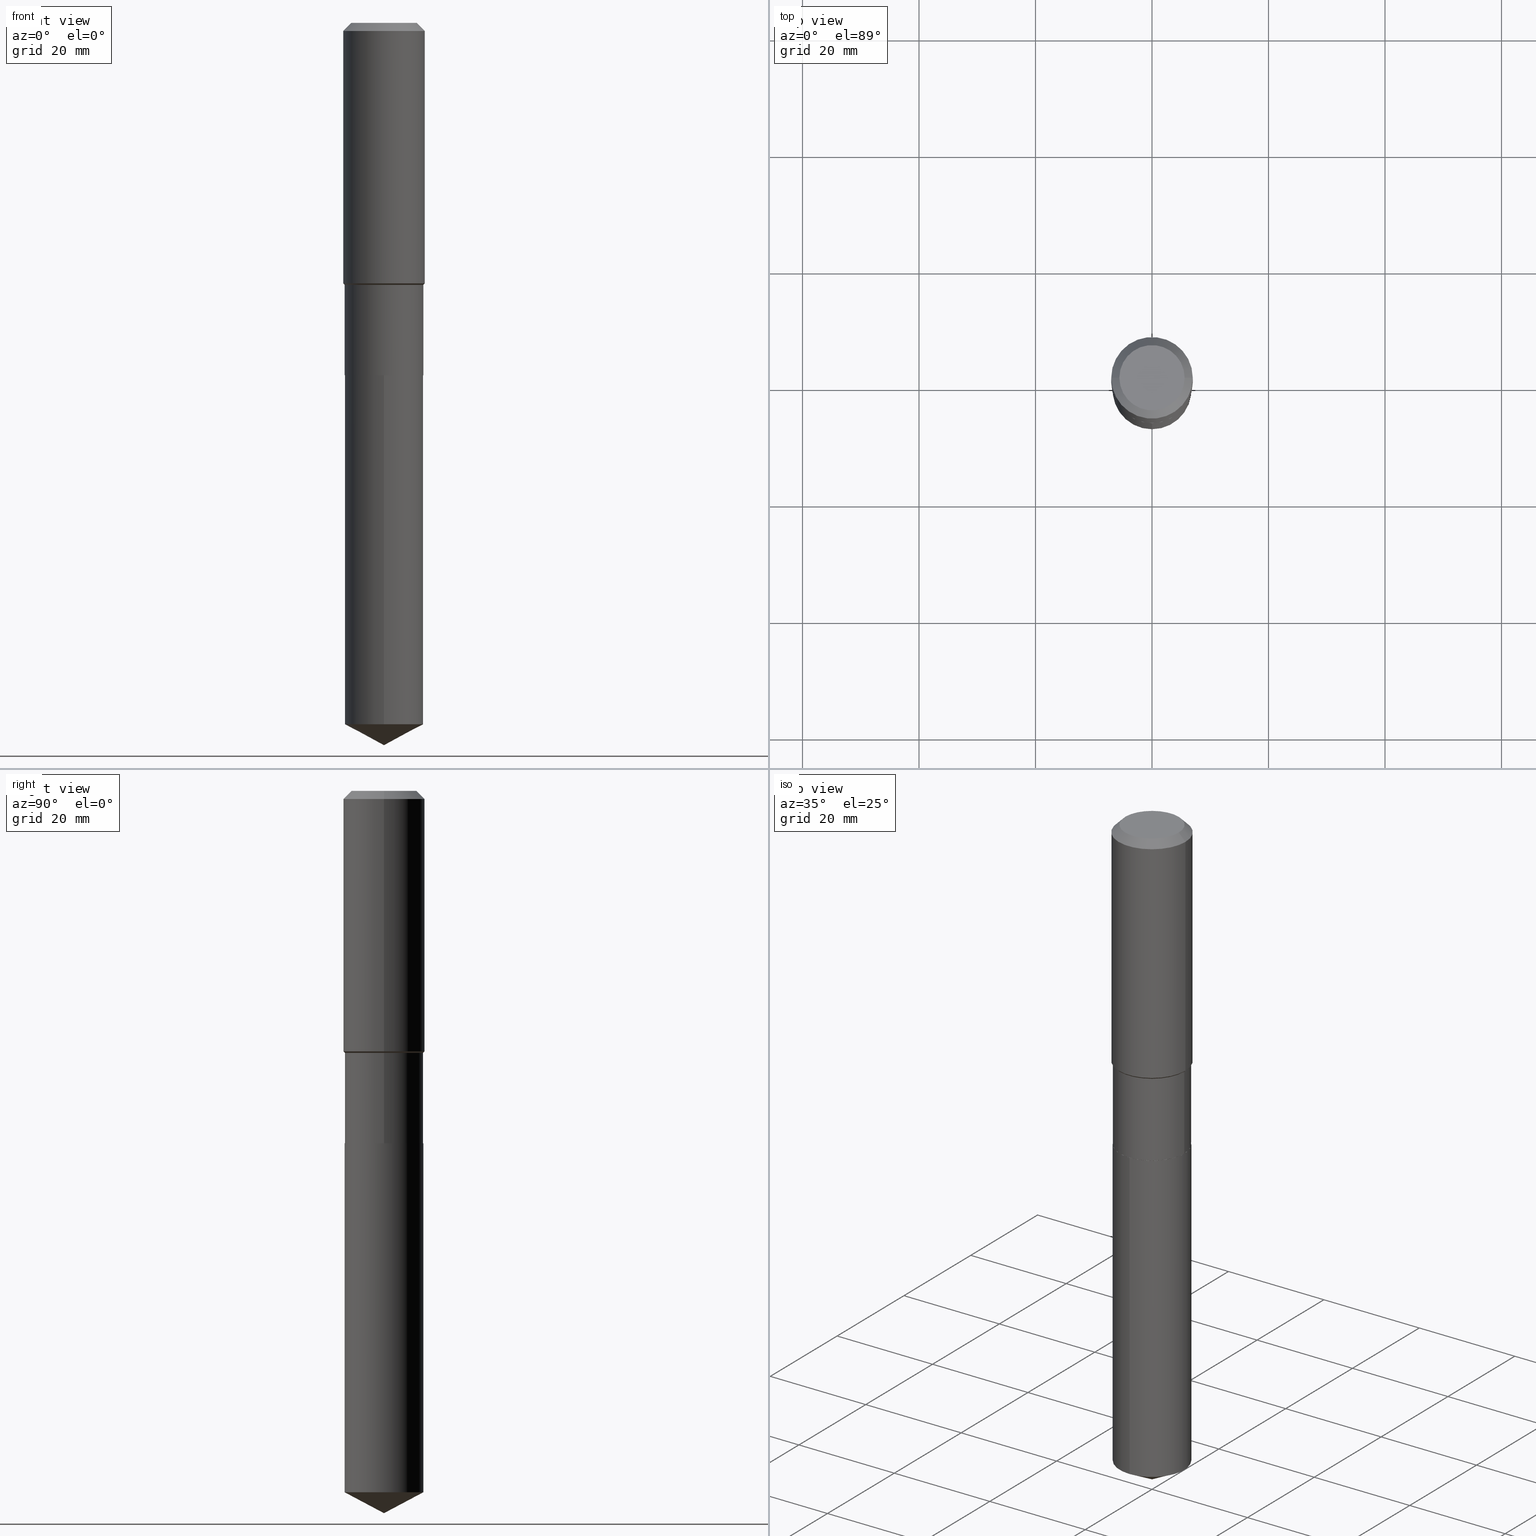
[diagram: canonical four-view strip — front | top / right | iso, engineering-drawing reading convention]
A machine part, canonical four-view strip (front | top / right | iso — engineering-drawing reading convention). The complete STEP part file that produces these views, byte-faithful:
ISO-10303-21;
HEADER;
FILE_DESCRIPTION (( 'STEP AP203' ),
    '1' );
FILE_NAME ('65254.STEP',
    '2024-04-24T22:02:49',
    ( '' ),
    ( '' ),
    'SwSTEP 2.0',
    'SolidWorks 2023',
    '' );
FILE_SCHEMA (( 'CONFIG_CONTROL_DESIGN' ));
ENDSEC;

DATA;
#1 = DIRECTION ( 'NONE',  ( -2.445468806185136877E-29, 3.491481338843145188E-15, 1.000000000000000000 ) ) ;
#2 = VERTEX_POINT ( 'NONE', #42 ) ;
#3 = DIRECTION ( 'NONE',  ( -2.445468806185136597E-29, 3.491481338843145583E-15, 1.000000000000000000 ) ) ;
#4 = VECTOR ( 'NONE', #393, 39.37007874015748143 ) ;
#5 = DIRECTION ( 'NONE',  ( 1.000000000000000000, -6.982962677686265922E-15, 0.000000000000000000 ) ) ;
#6 = EDGE_LOOP ( 'NONE', ( #257, #111, #490, #223 ) ) ;
#7 = CARTESIAN_POINT ( 'NONE',  ( 5.824862149452375369E-29, -8.316359400990487656E-15, -2.381899999999999462 ) ) ;
#8 = PERSON_AND_ORGANIZATION ( #124, #90 ) ;
#9 = CARTESIAN_POINT ( 'NONE',  ( 0.000000000000000000, 0.000000000000000000, 0.000000000000000000 ) ) ;
#10 = CONICAL_SURFACE ( 'NONE', #437, 74.04434902938376695, 1.082104136236487824 ) ;
#11 = PLANE ( 'NONE',  #246 ) ;
#12 = ADVANCED_FACE ( 'NONE', ( #183 ), #217, .T. ) ;
#13 = EDGE_CURVE ( 'NONE', #464, #216, #399, .T. ) ;
#14 = DIRECTION ( 'NONE',  ( -2.445468806185136597E-29, 3.491481338843145583E-15, 1.000000000000000000 ) ) ;
#15 = ORIENTED_EDGE ( 'NONE', *, *, #235, .F. ) ;
#16 = DIRECTION ( 'NONE',  ( -2.445468806185136597E-29, 3.491481338843145583E-15, 1.000000000000000000 ) ) ;
#17 = ORIENTED_EDGE ( 'NONE', *, *, #214, .T. ) ;
#18 = VECTOR ( 'NONE', #103, 39.37007874015748143 ) ;
#19 = ORIENTED_EDGE ( 'NONE', *, *, #455, .F. ) ;
#20 = DIRECTION ( 'NONE',  ( -6.982962677686266711E-15, -1.000000000000000000, 3.083930002255048040E-15 ) ) ;
#21 = PLANE ( 'NONE',  #296 ) ;
#22 = DATE_AND_TIME ( #29, #269 ) ;
#23 = EDGE_CURVE ( 'NONE', #74, #302, #382, .T. ) ;
#24 = PRODUCT_DEFINITION_SHAPE ( 'NONE', 'NONE',  #180 ) ;
#25 = DIRECTION ( 'NONE',  ( -6.982962677686265922E-15, -1.000000000000000000, 3.541896320645549825E-15 ) ) ;
#26 = ORIENTED_EDGE ( 'NONE', *, *, #345, .F. ) ;
#27 = EDGE_CURVE ( 'NONE', #464, #74, #55, .T. ) ;
#28 = ADVANCED_FACE ( 'NONE', ( #308 ), #378, .T. ) ;
#29 = CALENDAR_DATE ( 2024, 24, 4 ) ;
#30 = VERTEX_POINT ( 'NONE', #394 ) ;
#31 = VECTOR ( 'NONE', #243, 39.37007874015748143 ) ;
#32 = DIRECTION ( 'NONE',  ( -2.445468806185136597E-29, 3.491481338843145583E-15, 1.000000000000000000 ) ) ;
#33 = CC_DESIGN_PERSON_AND_ORGANIZATION_ASSIGNMENT ( #398, #193, ( #442 ) ) ;
#34 = LINE ( 'NONE', #177, #236 ) ;
#35 = AXIS2_PLACEMENT_3D ( 'NONE', #134, #474, #366 ) ;
#36 = EDGE_CURVE ( 'NONE', #176, #209, #388, .T. ) ;
#37 = ORIENTED_EDGE ( 'NONE', *, *, #309, .F. ) ;
#38 = CARTESIAN_POINT ( 'NONE',  ( 0.2657499999999999862, -8.038088338284680266E-15, -1.770699999999999275 ) ) ;
#39 = ORIENTED_EDGE ( 'NONE', *, *, #163, .F. ) ;
#40 = CARTESIAN_POINT ( 'NONE',  ( -9.439721640706190018E-47, 1.347742071746724849E-32, 3.860086710912454339E-18 ) ) ;
#41 = DIRECTION ( 'NONE',  ( -2.445468806185136597E-29, 3.491481338843145583E-15, 1.000000000000000000 ) ) ;
#42 = CARTESIAN_POINT ( 'NONE',  ( 0.2204800000000000093, -1.797903149065768707E-15, 3.860086710924123164E-18 ) ) ;
#43 = DIRECTION ( 'NONE',  ( -2.445468806185136597E-29, 3.491481338843145583E-15, 1.000000000000000000 ) ) ;
#44 = LINE ( 'NONE', #196, #362 ) ;
#45 = APPROVAL_STATUS ( 'not_yet_approved' ) ;
#46 = CARTESIAN_POINT ( 'NONE',  ( -9.439721640706190018E-47, 1.347742071746724849E-32, 3.860086710912454339E-18 ) ) ;
#47 = DIRECTION ( 'NONE',  ( -2.445468806185136597E-29, 3.491481338843145583E-15, 1.000000000000000000 ) ) ;
#48 = CARTESIAN_POINT ( 'NONE',  ( 0.000000000000000000, 0.000000000000000000, 0.000000000000000000 ) ) ;
#49 = DIRECTION ( 'NONE',  ( -2.445468806185136597E-29, 3.491481338843145583E-15, 1.000000000000000000 ) ) ;
#50 = EDGE_LOOP ( 'NONE', ( #381, #190, #459, #322 ) ) ;
#51 = LINE ( 'NONE', #396, #425 ) ;
#52 = DIRECTION ( 'NONE',  ( -2.445196029455757916E-29, 3.491871970645102957E-15, 1.000000000000000000 ) ) ;
#53 = CARTESIAN_POINT ( 'NONE',  ( 0.000000000000000000, 0.000000000000000000, 0.000000000000000000 ) ) ;
#54 = ORIENTED_EDGE ( 'NONE', *, *, #395, .T. ) ;
#55 = CIRCLE ( 'NONE', #324, 0.2756000000000002337 ) ;
#56 = CIRCLE ( 'NONE', #211, 0.2756000000000002337 ) ;
#57 = ORIENTED_EDGE ( 'NONE', *, *, #112, .T. ) ;
#58 = CC_DESIGN_APPROVAL ( #81, ( #334 ) ) ;
#59 = EDGE_LOOP ( 'NONE', ( #97, #457 ) ) ;
#60 = APPROVAL_DATE_TIME ( #22, #81 ) ;
#61 = CARTESIAN_POINT ( 'NONE',  ( 5.824862149452375369E-29, -8.316359400990487656E-15, -2.381899999999999462 ) ) ;
#62 = ADVANCED_FACE ( 'NONE', ( #402 ), #415, .T. ) ;
#63 = DATE_TIME_ROLE ( 'classification_date' ) ;
#64 = APPROVAL_ROLE ( '' ) ;
#65 = AXIS2_PLACEMENT_3D ( 'NONE', #238, #125, #356 ) ;
#66 = APPROVAL_STATUS ( 'not_yet_approved' ) ;
#67 = CARTESIAN_POINT ( 'NONE',  ( 0.000000000000000000, 0.000000000000000000, 0.000000000000000000 ) ) ;
#68 = DIRECTION ( 'NONE',  ( 1.000000000000000000, -6.982962677686265922E-15, 0.000000000000000000 ) ) ;
#69 = EDGE_CURVE ( 'NONE', #2, #302, #450, .T. ) ;
#70 = AXIS2_PLACEMENT_3D ( 'NONE', #126, #400, #155 ) ;
#71 = AXIS2_PLACEMENT_3D ( 'NONE', #234, #226, #405 ) ;
#72 = ORIENTED_EDGE ( 'NONE', *, *, #13, .F. ) ;
#73 = ADVANCED_FACE ( 'NONE', ( #205 ), #86, .T. ) ;
#74 = VERTEX_POINT ( 'NONE', #410 ) ;
#75 = EDGE_LOOP ( 'NONE', ( #19, #414, #160, #261 ) ) ;
#76 = CIRCLE ( 'NONE', #215, 0.2657499999999999862 ) ;
#77 = CARTESIAN_POINT ( 'NONE',  ( 1.193851334465927736E-28, -1.704510888171416083E-14, -4.881899999999999906 ) ) ;
#78 = CARTESIAN_POINT ( 'NONE',  ( 4.306103747371095774E-29, -6.147974915501949326E-15, -1.760849999999999138 ) ) ;
#79 = CARTESIAN_POINT ( 'NONE',  ( 5.824862149452375369E-29, -8.316359400990487656E-15, -2.381899999999999462 ) ) ;
#80 = PERSON_AND_ORGANIZATION_ROLE ( 'creator' ) ;
#81 = APPROVAL ( #66, 'UNSPECIFIED' ) ;
#82 = ORIENTED_EDGE ( 'NONE', *, *, #250, .T. ) ;
#83 = FACE_OUTER_BOUND ( 'NONE', #213, .T. ) ;
#84 = DIRECTION ( 'NONE',  ( 1.000000000000000000, -6.982962677686267499E-15, 0.000000000000000000 ) ) ;
#85 = AXIS2_PLACEMENT_3D ( 'NONE', #348, #363, #20 ) ;
#86 = CYLINDRICAL_SURFACE ( 'NONE', #156, 0.2756000000000001227 ) ;
#87 = AXIS2_PLACEMENT_3D ( 'NONE', #53, #120, #267 ) ;
#88 = DIRECTION ( 'NONE',  ( -2.445196029455757916E-29, 3.491871970645102957E-15, 1.000000000000000000 ) ) ;
#89 = ADVANCED_FACE ( 'NONE', ( #83 ), #449, .T. ) ;
#90 = ORGANIZATION ( 'UNSPECIFIED', 'UNSPECIFIED', '' ) ;
#91 = DIRECTION ( 'NONE',  ( 1.000000000000000000, -6.982962677686267499E-15, 4.876176775795935793E-29 ) ) ;
#92 = CYLINDRICAL_SURFACE ( 'NONE', #87, 0.2657500000000000417 ) ;
#93 = ORIENTED_EDGE ( 'NONE', *, *, #431, .T. ) ;
#94 = CARTESIAN_POINT ( 'NONE',  ( 1.888267320282524127E-15, 0.2657499999999916596, -2.381900000000000350 ) ) ;
#95 = DIRECTION ( 'NONE',  ( -1.000000000000000000, 6.982962677686269077E-15, 0.000000000000000000 ) ) ;
#96 = APPROVAL_ROLE ( '' ) ;
#97 = ORIENTED_EDGE ( 'NONE', *, *, #461, .F. ) ;
#98 = FACE_OUTER_BOUND ( 'NONE', #6, .T. ) ;
#99 = COORDINATED_UNIVERSAL_TIME_OFFSET ( 5, 0, .BEHIND. ) ;
#100 = CIRCLE ( 'NONE', #372, 0.2756000000000000116 ) ;
#101 = APPROVAL ( #45, 'UNSPECIFIED' ) ;
#102 = PERSON_AND_ORGANIZATION ( #124, #90 ) ;
#103 = DIRECTION ( 'NONE',  ( -0.7071067811865453523, 2.468850131082234184E-15, -0.7071067811865496822 ) ) ;
#104 = PERSON_AND_ORGANIZATION ( #124, #90 ) ;
#105 = CARTESIAN_POINT ( 'NONE',  ( 1.347942405969256063E-30, -1.924504513970354330E-16, -0.05512000000000035621 ) ) ;
#106 = DATE_TIME_ROLE ( 'creation_date' ) ;
#107 = AXIS2_PLACEMENT_3D ( 'NONE', #357, #14, #128 ) ;
#108 = DIRECTION ( 'NONE',  ( -2.445468806185136597E-29, 3.491481338843145583E-15, 1.000000000000000000 ) ) ;
#109 = APPROVAL ( #420, 'UNSPECIFIED' ) ;
#110 = CIRCLE ( 'NONE', #340, 0.2657499999999999862 ) ;
#111 = ORIENTED_EDGE ( 'NONE', *, *, #214, .F. ) ;
#112 = EDGE_CURVE ( 'NONE', #282, #30, #353, .T. ) ;
#113 = ORIENTED_EDGE ( 'NONE', *, *, #461, .T. ) ;
#114 = CARTESIAN_POINT ( 'NONE',  ( 5.824862149452375369E-29, -8.316359400990487656E-15, -2.381899999999999462 ) ) ;
#115 = VERTEX_POINT ( 'NONE', #195 ) ;
#116 = PLANE ( 'NONE',  #65 ) ;
#117 = CALENDAR_DATE ( 2024, 24, 4 ) ;
#118 = CYLINDRICAL_SURFACE ( 'NONE', #85, 0.2657499999999999862 ) ;
#119 = AXIS2_PLACEMENT_3D ( 'NONE', #194, #253, #392 ) ;
#120 = DIRECTION ( 'NONE',  ( -2.445468806185136597E-29, 3.491481338843145583E-15, 1.000000000000000000 ) ) ;
#121 = DIRECTION ( 'NONE',  ( -6.982962677686266711E-15, -1.000000000000000000, 3.083930002255048040E-15 ) ) ;
#122 = APPROVAL_ROLE ( '' ) ;
#123 = ORIENTED_EDGE ( 'NONE', *, *, #447, .T. ) ;
#124 = PERSON ( 'UNSPECIFIED', 'UNSPECIFIED', 'UNSPECIFIED', ('UNSPECIFIED'), ('UNSPECIFIED'), ('UNSPECIFIED') ) ;
#125 = DIRECTION ( 'NONE',  ( 2.445196029455757636E-29, -3.491871970645102957E-15, -1.000000000000000000 ) ) ;
#126 = CARTESIAN_POINT ( 'NONE',  ( 4.330191615112019703E-29, -6.182366006689555708E-15, -1.770699999999999275 ) ) ;
#127 = CC_DESIGN_DATE_AND_TIME_ASSIGNMENT ( #295, #106, ( #180 ) ) ;
#128 = DIRECTION ( 'NONE',  ( 1.000000000000000000, -6.982962677686265922E-15, 0.000000000000000000 ) ) ;
#129 = EDGE_LOOP ( 'NONE', ( #365, #360 ) ) ;
#130 = AXIS2_PLACEMENT_3D ( 'NONE', #187, #47, #5 ) ;
#131 = FACE_OUTER_BOUND ( 'NONE', #350, .T. ) ;
#132 = VERTEX_POINT ( 'NONE', #262 ) ;
#133 = DIRECTION ( 'NONE',  ( -2.445468806185136597E-29, 3.491481338843145583E-15, 1.000000000000000000 ) ) ;
#134 = CARTESIAN_POINT ( 'NONE',  ( 1.159234166810088116E-28, -1.655263159750675683E-14, -4.740598218535962971 ) ) ;
#135 = FACE_OUTER_BOUND ( 'NONE', #389, .T. ) ;
#136 = DATE_AND_TIME ( #419, #197 ) ;
#137 = ORIENTED_EDGE ( 'NONE', *, *, #384, .F. ) ;
#138 = CC_DESIGN_PERSON_AND_ORGANIZATION_ASSIGNMENT ( #102, #336, ( #180 ) ) ;
#139 = CIRCLE ( 'NONE', #458, 0.2657500000000000417 ) ;
#140 = APPROVAL_DATE_TIME ( #422, #109 ) ;
#141 = LINE ( 'NONE', #375, #18 ) ;
#142 = CALENDAR_DATE ( 2024, 24, 4 ) ;
#143 = VECTOR ( 'NONE', #310, 39.37007874015748143 ) ;
#144 = ORIENTED_EDGE ( 'NONE', *, *, #411, .F. ) ;
#145 = EDGE_LOOP ( 'NONE', ( #478, #279, #39, #313 ) ) ;
#146 = ORIENTED_EDGE ( 'NONE', *, *, #431, .F. ) ;
#147 = ORIENTED_EDGE ( 'NONE', *, *, #455, .T. ) ;
#148 = PRODUCT_RELATED_PRODUCT_CATEGORY ( 'detail', '', ( #251 ) ) ;
#149 = DIRECTION ( 'NONE',  ( -1.000000000000000000, 6.982962677686269077E-15, 0.000000000000000000 ) ) ;
#150 = FACE_OUTER_BOUND ( 'NONE', #456, .T. ) ;
#151 = ORIENTED_EDGE ( 'NONE', *, *, #273, .F. ) ;
#152 = CC_DESIGN_APPROVAL ( #109, ( #180 ) ) ;
#153 = ADVANCED_FACE ( 'NONE', ( #150 ), #118, .T. ) ;
#154 = CARTESIAN_POINT ( 'NONE',  ( -0.2657500000000000417, 1.888267320282466541E-15, -1.307207000235241229E-29 ) ) ;
#155 = DIRECTION ( 'NONE',  ( 1.000000000000000000, -6.982962677686264344E-15, 0.000000000000000000 ) ) ;
#156 = AXIS2_PLACEMENT_3D ( 'NONE', #48, #200, #91 ) ;
#157 = AXIS2_PLACEMENT_3D ( 'NONE', #438, #49, #164 ) ;
#158 = CC_DESIGN_APPROVAL ( #101, ( #442 ) ) ;
#159 = ADVANCED_FACE ( 'NONE', ( #98 ), #256, .T. ) ;
#160 = ORIENTED_EDGE ( 'NONE', *, *, #163, .T. ) ;
#161 = DIRECTION ( 'NONE',  ( -2.445196029455757916E-29, 3.491871970645102957E-15, 1.000000000000000000 ) ) ;
#162 = DIRECTION ( 'NONE',  ( 1.000000000000000000, -6.982962677686266711E-15, 4.876132675269083677E-29 ) ) ;
#163 = EDGE_CURVE ( 'NONE', #302, #216, #100, .T. ) ;
#164 = DIRECTION ( 'NONE',  ( 1.000000000000000000, -6.982962677686265922E-15, 0.000000000000000000 ) ) ;
#165 = ORIENTED_EDGE ( 'NONE', *, *, #471, .F. ) ;
#166 = VECTOR ( 'NONE', #470, 39.37007874015748143 ) ;
#167 = ORIENTED_EDGE ( 'NONE', *, *, #36, .F. ) ;
#168 = DIRECTION ( 'NONE',  ( -2.445196029455757916E-29, 3.491871970645102957E-15, 1.000000000000000000 ) ) ;
#169 = DIRECTION ( 'NONE',  ( 1.000000000000000000, 0.000000000000000000, 0.000000000000000000 ) ) ;
#170 = EDGE_CURVE ( 'NONE', #171, #216, #141, .T. ) ;
#171 = VERTEX_POINT ( 'NONE', #231 ) ;
#172 = DESIGN_CONTEXT ( 'detailed design', #483, 'design' ) ;
#173 = CIRCLE ( 'NONE', #416, 0.2657500000000000417 ) ;
#174 = ADVANCED_FACE ( 'NONE', ( #404 ), #332, .T. ) ;
#175 = CARTESIAN_POINT ( 'NONE',  ( 1.888267320282582503E-15, 0.2657499999999916596, -2.381900000000000350 ) ) ;
#176 = VERTEX_POINT ( 'NONE', #278 ) ;
#177 = CARTESIAN_POINT ( 'NONE',  ( 1.193720249620006640E-28, -1.704696977349232690E-14, -4.881899999999999906 ) ) ;
#178 = VECTOR ( 'NONE', #268, 39.37007874015748143 ) ;
#179 = APPROVAL_PERSON_ORGANIZATION ( #206, #81, #96 ) ;
#180 = PRODUCT_DEFINITION ( 'UNKNOWN', '', #442, #172 ) ;
#181 = EDGE_CURVE ( 'NONE', #216, #302, #465, .T. ) ;
#182 = CARTESIAN_POINT ( 'NONE',  ( 5.823639415049283689E-29, -8.314613660321065363E-15, -2.381399999999999739 ) ) ;
#183 = FACE_OUTER_BOUND ( 'NONE', #50, .T. ) ;
#184 = CYLINDRICAL_SURFACE ( 'NONE', #347, 0.2657499999999999862 ) ;
#185 = DIRECTION ( 'NONE',  ( 1.000000000000000000, -6.982962677686265133E-15, 4.876176775795935232E-29 ) ) ;
#186 = VECTOR ( 'NONE', #168, 39.37007874015748143 ) ;
#187 = CARTESIAN_POINT ( 'NONE',  ( 5.824862149452375369E-29, -8.316359400990487656E-15, -2.381899999999999462 ) ) ;
#188 = DIRECTION ( 'NONE',  ( -6.165590087286839185E-15, -0.8829475928589269884, 0.4694715627858908058 ) ) ;
#189 = EDGE_LOOP ( 'NONE', ( #151, #123, #167 ) ) ;
#190 = ORIENTED_EDGE ( 'NONE', *, *, #235, .T. ) ;
#191 = CARTESIAN_POINT ( 'NONE',  ( -8.432970799170186122E-28, 1.204292351072433206E-13, 34.48817874015747975 ) ) ;
#192 = EDGE_CURVE ( 'NONE', #209, #176, #204, .T. ) ;
#193 = PERSON_AND_ORGANIZATION_ROLE ( 'design_supplier' ) ;
#194 = CARTESIAN_POINT ( 'NONE',  ( 1.159234166810088116E-28, -1.655263159750675683E-14, -4.740598218535962971 ) ) ;
#195 = CARTESIAN_POINT ( 'NONE',  ( -0.2657500000000000973, -5.360222513222844389E-15, -2.381399999999999739 ) ) ;
#196 = CARTESIAN_POINT ( 'NONE',  ( -0.2657499999999999862, -4.294098686407089167E-15, -1.770699999999999275 ) ) ;
#197 = LOCAL_TIME ( 18, 2, 49.00000000000000000, #99 ) ;
#198 = DIRECTION ( 'NONE',  ( -2.445468806185136597E-29, 3.491481338843145583E-15, 1.000000000000000000 ) ) ;
#199 =( NAMED_UNIT ( * ) SI_UNIT ( $, .STERADIAN. ) SOLID_ANGLE_UNIT ( ) );
#200 = DIRECTION ( 'NONE',  ( -2.445468806185136597E-29, 3.491481338843145583E-15, 1.000000000000000000 ) ) ;
#201 = ORIENTED_EDGE ( 'NONE', *, *, #273, .T. ) ;
#202 = CARTESIAN_POINT ( 'NONE',  ( -1.855722331595066971E-15, -0.2657500000000083129, -2.381899999999998574 ) ) ;
#203 = ORIENTED_EDGE ( 'NONE', *, *, #489, .F. ) ;
#204 = CIRCLE ( 'NONE', #35, 0.2657499999999999862 ) ;
#205 = FACE_OUTER_BOUND ( 'NONE', #446, .T. ) ;
#206 = PERSON_AND_ORGANIZATION ( #124, #90 ) ;
#207 = FACE_OUTER_BOUND ( 'NONE', #189, .T. ) ;
#208 = PERSON_AND_ORGANIZATION_ROLE ( 'design_owner' ) ;
#209 = VERTEX_POINT ( 'NONE', #355 ) ;
#210 = ADVANCED_FACE ( 'NONE', ( #409 ), #21, .F. ) ;
#211 = AXIS2_PLACEMENT_3D ( 'NONE', #480, #133, #84 ) ;
#212 = APPROVAL_PERSON_ORGANIZATION ( #254, #109, #64 ) ;
#213 = EDGE_LOOP ( 'NONE', ( #413, #472, #144, #448 ) ) ;
#214 = EDGE_CURVE ( 'NONE', #171, #2, #390, .T. ) ;
#215 = AXIS2_PLACEMENT_3D ( 'NONE', #277, #481, #230 ) ;
#216 = VERTEX_POINT ( 'NONE', #476 ) ;
#217 = CYLINDRICAL_SURFACE ( 'NONE', #221, 0.2657500000000000417 ) ;
#218 = FACE_OUTER_BOUND ( 'NONE', #479, .T. ) ;
#219 = CARTESIAN_POINT ( 'NONE',  ( 5.823639415049283689E-29, -8.314613660321065363E-15, -2.381399999999999739 ) ) ;
#220 = DIRECTION ( 'NONE',  ( 1.000000000000000000, -6.982962677686265922E-15, 0.000000000000000000 ) ) ;
#221 = AXIS2_PLACEMENT_3D ( 'NONE', #9, #432, #185 ) ;
#222 = AXIS2_PLACEMENT_3D ( 'NONE', #341, #385, #149 ) ;
#223 = ORIENTED_EDGE ( 'NONE', *, *, #181, .T. ) ;
#224 = APPROVAL_PERSON_ORGANIZATION ( #8, #101, #122 ) ;
#225 = DIRECTION ( 'NONE',  ( -6.982962677686265922E-15, -1.000000000000000000, 3.541896320645549825E-15 ) ) ;
#226 = DIRECTION ( 'NONE',  ( -2.445468806185136597E-29, 3.491481338843145583E-15, 1.000000000000000000 ) ) ;
#227 = FACE_OUTER_BOUND ( 'NONE', #59, .T. ) ;
#228 = CARTESIAN_POINT ( 'NONE',  ( -0.2657499999999999862, -5.360222513222844389E-15, -1.770699999999999275 ) ) ;
#229 = DATE_AND_TIME ( #117, #239 ) ;
#230 = DIRECTION ( 'NONE',  ( 1.000000000000000000, -6.982962677686264344E-15, 0.000000000000000000 ) ) ;
#231 = CARTESIAN_POINT ( 'NONE',  ( -0.2204800000000000093, 1.635828836874783961E-15, 3.860086710901350968E-18 ) ) ;
#232 = EDGE_CURVE ( 'NONE', #287, #242, #314, .T. ) ;
#233 = VECTOR ( 'NONE', #346, 39.37007874015748143 ) ;
#234 = CARTESIAN_POINT ( 'NONE',  ( 4.330191615112019703E-29, -6.182366006689555708E-15, -1.770699999999999275 ) ) ;
#235 = EDGE_CURVE ( 'NONE', #115, #132, #173, .T. ) ;
#236 = VECTOR ( 'NONE', #188, 39.37007874015748854 ) ;
#237 = CARTESIAN_POINT ( 'NONE',  ( -4.719860820353095009E-47, 6.738710358733624243E-33, 1.930043355456227170E-18 ) ) ;
#238 = CARTESIAN_POINT ( 'NONE',  ( 5.824862149452375369E-29, -8.316359400990487656E-15, -2.381899999999999462 ) ) ;
#239 = LOCAL_TIME ( 18, 2, 49.00000000000000000, #462 ) ;
#240 = ORIENTED_EDGE ( 'NONE', *, *, #352, .F. ) ;
#241 = CARTESIAN_POINT ( 'NONE',  ( 5.824862149452375369E-29, -8.316359400990487656E-15, -2.381899999999999462 ) ) ;
#242 = VERTEX_POINT ( 'NONE', #175 ) ;
#243 = DIRECTION ( 'NONE',  ( 0.7071067811865453523, -7.319954787623248157E-15, -0.7071067811865496822 ) ) ;
#244 = ORIENTED_EDGE ( 'NONE', *, *, #192, .T. ) ;
#245 = AXIS2_PLACEMENT_3D ( 'NONE', #453, #298, #95 ) ;
#246 = AXIS2_PLACEMENT_3D ( 'NONE', #241, #317, #467 ) ;
#247 = ORIENTED_EDGE ( 'NONE', *, *, #255, .F. ) ;
#248 = PERSON_AND_ORGANIZATION ( #124, #90 ) ;
#249 = APPLICATION_PROTOCOL_DEFINITION ( 'international standard', 'config_control_design', 1994, #483 ) ;
#250 = EDGE_CURVE ( 'NONE', #444, #304, #325, .T. ) ;
#251 = PRODUCT ( '65254', '65254', '', ( #292 ) ) ;
#252 = PERSON_AND_ORGANIZATION_ROLE ( 'classification_officer' ) ;
#253 = DIRECTION ( 'NONE',  ( -2.445196029455757916E-29, 3.491871970645102957E-15, 1.000000000000000000 ) ) ;
#254 = PERSON_AND_ORGANIZATION ( #124, #90 ) ;
#255 = EDGE_CURVE ( 'NONE', #132, #115, #139, .T. ) ;
#256 = CONICAL_SURFACE ( 'NONE', #222, 0.2756000000000000116, 0.7853981633974452814 ) ;
#257 = ORIENTED_EDGE ( 'NONE', *, *, #69, .F. ) ;
#258 = CC_DESIGN_PERSON_AND_ORGANIZATION_ASSIGNMENT ( #248, #252, ( #334 ) ) ;
#259 = CIRCLE ( 'NONE', #454, 0.2652499999999999858 ) ;
#260 = ADVANCED_BREP_SHAPE_REPRESENTATION ( '65254', ( #288, #300, #380 ), #305 ) ;
#261 = ORIENTED_EDGE ( 'NONE', *, *, #170, .F. ) ;
#262 = CARTESIAN_POINT ( 'NONE',  ( 0.2657500000000000417, -1.017033599191619229E-14, -2.381399999999999739 ) ) ;
#263 = ORIENTED_EDGE ( 'NONE', *, *, #469, .T. ) ;
#264 = ORIENTED_EDGE ( 'NONE', *, *, #345, .T. ) ;
#265 = CLOSED_SHELL ( 'NONE', ( #174, #62, #299, #89, #370, #12, #418, #73, #159, #210, #290, #434 ) ) ;
#266 = VECTOR ( 'NONE', #312, 39.37007874015748143 ) ;
#267 = DIRECTION ( 'NONE',  ( 1.000000000000000000, -6.982962677686265133E-15, 4.876176775795935232E-29 ) ) ;
#268 = DIRECTION ( 'NONE',  ( -2.445468806185136877E-29, 3.491481338843145188E-15, 1.000000000000000000 ) ) ;
#269 = LOCAL_TIME ( 18, 2, 49.00000000000000000, #367 ) ;
#270 = PERSON_AND_ORGANIZATION ( #124, #90 ) ;
#271 = CARTESIAN_POINT ( 'NONE',  ( -1.855722331595066971E-15, -0.2657500000000083129, -2.381899999999998574 ) ) ;
#272 = DIRECTION ( 'NONE',  ( 1.000000000000000000, -6.982962677686265922E-15, 0.000000000000000000 ) ) ;
#273 = EDGE_CURVE ( 'NONE', #439, #176, #34, .T. ) ;
#274 = FACE_OUTER_BOUND ( 'NONE', #145, .T. ) ;
#275 = CARTESIAN_POINT ( 'NONE',  ( 1.193720249620006416E-28, -1.704696977349232690E-14, -4.881899999999999906 ) ) ;
#276 = APPROVAL_DATE_TIME ( #229, #101 ) ;
#277 = CARTESIAN_POINT ( 'NONE',  ( 4.330191615112019703E-29, -6.182366006689555708E-15, -1.770699999999999275 ) ) ;
#278 = CARTESIAN_POINT ( 'NONE',  ( -1.855722331595009384E-15, -0.2657500000000165286, -4.740598218535962083 ) ) ;
#279 = ORIENTED_EDGE ( 'NONE', *, *, #13, .T. ) ;
#280 = VECTOR ( 'NONE', #1, 39.37007874015748143 ) ;
#281 = CONICAL_SURFACE ( 'NONE', #130, 0.2652499999999999858, 0.7853981633976190313 ) ;
#282 = VERTEX_POINT ( 'NONE', #285 ) ;
#283 = CC_DESIGN_PERSON_AND_ORGANIZATION_ASSIGNMENT ( #270, #80, ( #442 ) ) ;
#284 = LINE ( 'NONE', #445, #4 ) ;
#285 = CARTESIAN_POINT ( 'NONE',  ( -0.2652499999999999858, -6.428995567212710813E-15, -2.381899999999999462 ) ) ;
#286 = DIRECTION ( 'NONE',  ( -2.445196029455757916E-29, 3.491871970645102957E-15, 1.000000000000000000 ) ) ;
#287 = VERTEX_POINT ( 'NONE', #271 ) ;
#288 = MANIFOLD_SOLID_BREP ( 'Body-Move/Copy2[1]', #428 ) ;
#289 = DIRECTION ( 'NONE',  ( -1.000000000000000000, 6.982962677686265922E-15, -4.876176775795935793E-29 ) ) ;
#290 = ADVANCED_FACE ( 'NONE', ( #227 ), #11, .F. ) ;
#291 = SHAPE_DEFINITION_REPRESENTATION ( #24, #260 ) ;
#292 = MECHANICAL_CONTEXT ( 'NONE', #318, 'mechanical' ) ;
#293 = ORIENTED_EDGE ( 'NONE', *, *, #255, .T. ) ;
#294 = LOCAL_TIME ( 18, 2, 49.00000000000000000, #368 ) ;
#295 = DATE_AND_TIME ( #142, #326 ) ;
#296 = AXIS2_PLACEMENT_3D ( 'NONE', #237, #329, #289 ) ;
#297 = ORIENTED_EDGE ( 'NONE', *, *, #23, .T. ) ;
#298 = DIRECTION ( 'NONE',  ( 2.445468806185136597E-29, -3.491481338843145583E-15, -1.000000000000000000 ) ) ;
#299 = ADVANCED_FACE ( 'NONE', ( #274 ), #473, .T. ) ;
#300 = MANIFOLD_SOLID_BREP ( 'Body-Move/Copy2[2]', #265 ) ;
#301 = ORIENTED_EDGE ( 'NONE', *, *, #192, .F. ) ;
#302 = VERTEX_POINT ( 'NONE', #343 ) ;
#303 = VECTOR ( 'NONE', #88, 39.37007874015748143 ) ;
#304 = VERTEX_POINT ( 'NONE', #38 ) ;
#305 =( GEOMETRIC_REPRESENTATION_CONTEXT ( 3 ) GLOBAL_UNCERTAINTY_ASSIGNED_CONTEXT ( ( #452 ) ) GLOBAL_UNIT_ASSIGNED_CONTEXT ( ( #433, #468, #199 ) ) REPRESENTATION_CONTEXT ( 'NONE', 'WORKASPACE' ) );
#306 = DIRECTION ( 'NONE',  ( 1.000000000000000000, -6.982962677686264344E-15, 0.000000000000000000 ) ) ;
#307 = CARTESIAN_POINT ( 'NONE',  ( 5.824862149452375369E-29, -8.316359400990487656E-15, -2.381899999999999462 ) ) ;
#308 = FACE_OUTER_BOUND ( 'NONE', #320, .T. ) ;
#309 = EDGE_CURVE ( 'NONE', #304, #444, #76, .T. ) ;
#310 = DIRECTION ( 'NONE',  ( -2.445468806185136877E-29, 3.491481338843145188E-15, 1.000000000000000000 ) ) ;
#311 = DIRECTION ( 'NONE',  ( 1.000000000000000000, -6.982962677686267499E-15, 0.000000000000000000 ) ) ;
#312 = DIRECTION ( 'NONE',  ( 6.273719981627770021E-15, 0.8829475928589302081, 0.4694715627858845886 ) ) ;
#313 = ORIENTED_EDGE ( 'NONE', *, *, #23, .F. ) ;
#314 = CIRCLE ( 'NONE', #477, 0.2657499999999999862 ) ;
#315 = LENGTH_MEASURE_WITH_UNIT ( LENGTH_MEASURE( 0.02539999999999999897 ), #319 );
#316 = ADVANCED_FACE ( 'NONE', ( #207 ), #10, .T. ) ;
#317 = DIRECTION ( 'NONE',  ( -2.438088387897960049E-29, 3.491481338843145188E-15, 1.000000000000000000 ) ) ;
#318 = APPLICATION_CONTEXT ( 'configuration controlled 3d designs of mechanical parts and assemblies' ) ;
#319 =( LENGTH_UNIT ( ) NAMED_UNIT ( * ) SI_UNIT ( $, .METRE. ) );
#320 = EDGE_LOOP ( 'NONE', ( #358, #201, #301 ) ) ;
#321 = FACE_OUTER_BOUND ( 'NONE', #129, .T. ) ;
#322 = ORIENTED_EDGE ( 'NONE', *, *, #250, .F. ) ;
#323 = DIRECTION ( 'NONE',  ( 1.000000000000000000, -6.982962677686267499E-15, 4.876176775795935793E-29 ) ) ;
#324 = AXIS2_PLACEMENT_3D ( 'NONE', #78, #3, #311 ) ;
#325 = CIRCLE ( 'NONE', #430, 0.2657499999999999862 ) ;
#326 = LOCAL_TIME ( 18, 2, 49.00000000000000000, #488 ) ;
#327 = ORIENTED_EDGE ( 'NONE', *, *, #232, .F. ) ;
#328 = DIRECTION ( 'NONE',  ( -0.7071067811865511255, 7.493145998870366782E-15, 0.7071067811865439090 ) ) ;
#329 = DIRECTION ( 'NONE',  ( 2.438088387897960049E-29, -3.491481338843145188E-15, -1.000000000000000000 ) ) ;
#330 = DIRECTION ( 'NONE',  ( -6.982962677686266711E-15, -1.000000000000000000, 3.083930002255048040E-15 ) ) ;
#331 = AXIS2_PLACEMENT_3D ( 'NONE', #114, #43, #220 ) ;
#332 = CONICAL_SURFACE ( 'NONE', #107, 0.2652499999999999858, 0.7853981633976190313 ) ;
#333 = CC_DESIGN_DATE_AND_TIME_ASSIGNMENT ( #136, #63, ( #334 ) ) ;
#334 = SECURITY_CLASSIFICATION ( '', '', #373 ) ;
#335 = DIRECTION ( 'NONE',  ( 1.000000000000000000, -6.982962677686266711E-15, 0.000000000000000000 ) ) ;
#336 = PERSON_AND_ORGANIZATION_ROLE ( 'creator' ) ;
#337 = DIRECTION ( 'NONE',  ( 1.000000000000000000, -6.982962677686266711E-15, 0.000000000000000000 ) ) ;
#338 = CARTESIAN_POINT ( 'NONE',  ( 0.2756000000000000116, -2.083203699582869812E-15, -0.05512000000000035621 ) ) ;
#339 = AXIS2_PLACEMENT_3D ( 'NONE', #191, #460, #225 ) ;
#340 = AXIS2_PLACEMENT_3D ( 'NONE', #7, #463, #121 ) ;
#341 = CARTESIAN_POINT ( 'NONE',  ( 1.347942405969256063E-30, -1.924504513970354330E-16, -0.05512000000000035621 ) ) ;
#342 = CARTESIAN_POINT ( 'NONE',  ( -0.2756000000000001227, 1.958255779754836984E-15, -1.355658510874252567E-29 ) ) ;
#343 = CARTESIAN_POINT ( 'NONE',  ( 0.2756000000000000116, -2.116954965367370658E-15, -0.05512000000000035621 ) ) ;
#344 = ORIENTED_EDGE ( 'NONE', *, *, #36, .T. ) ;
#345 = EDGE_CURVE ( 'NONE', #30, #132, #484, .T. ) ;
#346 = DIRECTION ( 'NONE',  ( -2.445468806185136877E-29, 3.491481338843145188E-15, 1.000000000000000000 ) ) ;
#347 = AXIS2_PLACEMENT_3D ( 'NONE', #307, #161, #401 ) ;
#348 = CARTESIAN_POINT ( 'NONE',  ( 5.824862149452375369E-29, -8.316359400990487656E-15, -2.381899999999999462 ) ) ;
#349 = DIRECTION ( 'NONE',  ( 1.000000000000000000, -6.982962677686266711E-15, 4.876132675269083677E-29 ) ) ;
#350 = EDGE_LOOP ( 'NONE', ( #293, #263, #37, #203 ) ) ;
#351 = CARTESIAN_POINT ( 'NONE',  ( -0.2756000000000002337, -4.189719135747111948E-15, -1.760849999999999138 ) ) ;
#352 = EDGE_CURVE ( 'NONE', #176, #287, #436, .T. ) ;
#353 = CIRCLE ( 'NONE', #331, 0.2652499999999999858 ) ;
#354 = CONICAL_SURFACE ( 'NONE', #71, 0.2657499999999999862, 0.7853981633974533860 ) ;
#355 = CARTESIAN_POINT ( 'NONE',  ( 1.888267320282582109E-15, 0.2657499999999834994, -4.740598218535963859 ) ) ;
#356 = DIRECTION ( 'NONE',  ( 6.982962677686265922E-15, 1.000000000000000000, -3.491871970645102957E-15 ) ) ;
#357 = CARTESIAN_POINT ( 'NONE',  ( 5.824862149452375369E-29, -8.316359400990487656E-15, -2.381899999999999462 ) ) ;
#358 = ORIENTED_EDGE ( 'NONE', *, *, #447, .F. ) ;
#359 = DIRECTION ( 'NONE',  ( 0.7071067811865511255, -2.468850131082294531E-15, 0.7071067811865439090 ) ) ;
#360 = ORIENTED_EDGE ( 'NONE', *, *, #471, .T. ) ;
#361 = ORIENTED_EDGE ( 'NONE', *, *, #181, .F. ) ;
#362 = VECTOR ( 'NONE', #328, 39.37007874015748143 ) ;
#363 = DIRECTION ( 'NONE',  ( -2.445196029455757916E-29, 3.491871970645102957E-15, 1.000000000000000000 ) ) ;
#364 = DIRECTION ( 'NONE',  ( 0.000000000000000000, 0.000000000000000000, 1.000000000000000000 ) ) ;
#365 = ORIENTED_EDGE ( 'NONE', *, *, #232, .T. ) ;
#366 = DIRECTION ( 'NONE',  ( -6.982962677686266711E-15, -1.000000000000000000, 4.111906669673397387E-15 ) ) ;
#367 = COORDINATED_UNIVERSAL_TIME_OFFSET ( 5, 0, .BEHIND. ) ;
#368 = COORDINATED_UNIVERSAL_TIME_OFFSET ( 5, 0, .BEHIND. ) ;
#369 = EDGE_LOOP ( 'NONE', ( #146, #57, #264, #15 ) ) ;
#370 = ADVANCED_FACE ( 'NONE', ( #131 ), #92, .T. ) ;
#371 = ADVANCED_FACE ( 'NONE', ( #218 ), #184, .T. ) ;
#372 = AXIS2_PLACEMENT_3D ( 'NONE', #105, #108, #68 ) ;
#373 = SECURITY_CLASSIFICATION_LEVEL ( 'unclassified' ) ;
#374 = CC_DESIGN_PERSON_AND_ORGANIZATION_ASSIGNMENT ( #104, #208, ( #251 ) ) ;
#375 = CARTESIAN_POINT ( 'NONE',  ( -0.2756000000000000116, 1.732054062573300039E-15, -0.05512000000000035621 ) ) ;
#376 = ORIENTED_EDGE ( 'NONE', *, *, #395, .F. ) ;
#377 = DIRECTION ( 'NONE',  ( -2.445468806185136597E-29, 3.491481338843145583E-15, 1.000000000000000000 ) ) ;
#378 = CONICAL_SURFACE ( 'NONE', #339, 74.04434902938376695, 1.082104136236487824 ) ;
#379 = AXIS2_PLACEMENT_3D ( 'NONE', #440, #407, #323 ) ;
#380 = AXIS2_PLACEMENT_3D ( 'NONE', #67, #364, #169 ) ;
#381 = ORIENTED_EDGE ( 'NONE', *, *, #469, .F. ) ;
#382 = LINE ( 'NONE', #429, #233 ) ;
#383 = DIMENSIONAL_EXPONENTS ( 1.000000000000000000, 0.000000000000000000, 0.000000000000000000, 0.000000000000000000, 0.000000000000000000, 0.000000000000000000, 0.000000000000000000 ) ;
#384 = EDGE_CURVE ( 'NONE', #444, #464, #44, .T. ) ;
#385 = DIRECTION ( 'NONE',  ( 2.445468806185136597E-29, -3.491481338843145583E-15, -1.000000000000000000 ) ) ;
#386 = ORIENTED_EDGE ( 'NONE', *, *, #27, .F. ) ;
#387 = DIRECTION ( 'NONE',  ( -2.445468806185136597E-29, 3.491481338843145583E-15, 1.000000000000000000 ) ) ;
#388 = CIRCLE ( 'NONE', #119, 0.2657499999999999862 ) ;
#389 = EDGE_LOOP ( 'NONE', ( #137, #82, #482, #386 ) ) ;
#390 = CIRCLE ( 'NONE', #451, 0.2204800000000000093 ) ;
#391 = ORIENTED_EDGE ( 'NONE', *, *, #27, .T. ) ;
#392 = DIRECTION ( 'NONE',  ( -6.982962677686266711E-15, -1.000000000000000000, 4.111906669673397387E-15 ) ) ;
#393 = DIRECTION ( 'NONE',  ( -0.7071067811866682540, 7.493145998870789611E-15, 0.7071067811864267805 ) ) ;
#394 = CARTESIAN_POINT ( 'NONE',  ( 0.2652499999999999858, -1.016859025124677000E-14, -2.381899999999999462 ) ) ;
#395 = EDGE_CURVE ( 'NONE', #209, #242, #408, .T. ) ;
#396 = CARTESIAN_POINT ( 'NONE',  ( 0.2657499999999999862, -8.038088338284680266E-15, -1.770699999999999275 ) ) ;
#397 = LINE ( 'NONE', #154, #143 ) ;
#398 = PERSON_AND_ORGANIZATION ( #124, #90 ) ;
#399 = LINE ( 'NONE', #342, #280 ) ;
#400 = DIRECTION ( 'NONE',  ( -2.445468806185136597E-29, 3.491481338843145583E-15, 1.000000000000000000 ) ) ;
#401 = DIRECTION ( 'NONE',  ( -6.982962677686266711E-15, -1.000000000000000000, 3.083930002255048040E-15 ) ) ;
#402 = FACE_OUTER_BOUND ( 'NONE', #75, .T. ) ;
#403 = CARTESIAN_POINT ( 'NONE',  ( 0.2652499999999999858, -1.016859025124677000E-14, -2.381899999999999462 ) ) ;
#404 = FACE_OUTER_BOUND ( 'NONE', #406, .T. ) ;
#405 = DIRECTION ( 'NONE',  ( 1.000000000000000000, -6.982962677686264344E-15, 0.000000000000000000 ) ) ;
#406 = EDGE_LOOP ( 'NONE', ( #113, #93, #247, #26 ) ) ;
#407 = DIRECTION ( 'NONE',  ( -2.445468806185136597E-29, 3.491481338843145583E-15, 1.000000000000000000 ) ) ;
#408 = LINE ( 'NONE', #94, #186 ) ;
#409 = FACE_OUTER_BOUND ( 'NONE', #424, .T. ) ;
#410 = CARTESIAN_POINT ( 'NONE',  ( 0.2756000000000002337, -8.072479429472285858E-15, -1.760849999999999138 ) ) ;
#411 = EDGE_CURVE ( 'NONE', #74, #464, #56, .T. ) ;
#412 = CARTESIAN_POINT ( 'NONE',  ( -8.432970799170186122E-28, 1.204292351072433206E-13, 34.48817874015747975 ) ) ;
#413 = ORIENTED_EDGE ( 'NONE', *, *, #309, .T. ) ;
#414 = ORIENTED_EDGE ( 'NONE', *, *, #69, .T. ) ;
#415 = CONICAL_SURFACE ( 'NONE', #245, 0.2756000000000000116, 0.7853981633974452814 ) ;
#416 = AXIS2_PLACEMENT_3D ( 'NONE', #182, #32, #335 ) ;
#417 = ORIENTED_EDGE ( 'NONE', *, *, #352, .T. ) ;
#418 = ADVANCED_FACE ( 'NONE', ( #135 ), #354, .T. ) ;
#419 = CALENDAR_DATE ( 2024, 24, 4 ) ;
#420 = APPROVAL_STATUS ( 'not_yet_approved' ) ;
#421 = AXIS2_PLACEMENT_3D ( 'NONE', #40, #16, #349 ) ;
#422 = DATE_AND_TIME ( #485, #294 ) ;
#423 = CARTESIAN_POINT ( 'NONE',  ( 4.330191615112019703E-29, -6.182366006689555708E-15, -1.770699999999999275 ) ) ;
#424 = EDGE_LOOP ( 'NONE', ( #17, #147 ) ) ;
#425 = VECTOR ( 'NONE', #359, 39.37007874015748143 ) ;
#426 = EDGE_CURVE ( 'NONE', #304, #74, #51, .T. ) ;
#427 = LINE ( 'NONE', #77, #266 ) ;
#428 = CLOSED_SHELL ( 'NONE', ( #153, #316, #28, #371, #441 ) ) ;
#429 = CARTESIAN_POINT ( 'NONE',  ( 0.2756000000000001227, -1.924504513970336137E-15, 1.343874319409360548E-29 ) ) ;
#430 = AXIS2_PLACEMENT_3D ( 'NONE', #423, #377, #306 ) ;
#431 = EDGE_CURVE ( 'NONE', #282, #115, #284, .T. ) ;
#432 = DIRECTION ( 'NONE',  ( -2.445468806185136597E-29, 3.491481338843145583E-15, 1.000000000000000000 ) ) ;
#433 =( CONVERSION_BASED_UNIT ( 'INCH', #315 ) LENGTH_UNIT ( ) NAMED_UNIT ( #383 ) );
#434 = ADVANCED_FACE ( 'NONE', ( #466 ), #281, .T. ) ;
#435 = CARTESIAN_POINT ( 'NONE',  ( 0.2657500000000000417, -1.855722331595125347E-15, 1.295843978167770013E-29 ) ) ;
#436 = LINE ( 'NONE', #202, #303 ) ;
#437 = AXIS2_PLACEMENT_3D ( 'NONE', #412, #286, #25 ) ;
#438 = CARTESIAN_POINT ( 'NONE',  ( 1.347942405969256063E-30, -1.924504513970354330E-16, -0.05512000000000035621 ) ) ;
#439 = VERTEX_POINT ( 'NONE', #275 ) ;
#440 = CARTESIAN_POINT ( 'NONE',  ( 0.000000000000000000, 0.000000000000000000, 0.000000000000000000 ) ) ;
#441 = ADVANCED_FACE ( 'NONE', ( #321 ), #116, .F. ) ;
#442 = PRODUCT_DEFINITION_FORMATION_WITH_SPECIFIED_SOURCE ( 'ANY', '', #251, .NOT_KNOWN. ) ;
#443 = CC_DESIGN_SECURITY_CLASSIFICATION ( #334, ( #442 ) ) ;
#444 = VERTEX_POINT ( 'NONE', #228 ) ;
#445 = CARTESIAN_POINT ( 'NONE',  ( -0.2652499999999999858, -6.431644794386821225E-15, -2.381899999999999462 ) ) ;
#446 = EDGE_LOOP ( 'NONE', ( #72, #391, #297, #361 ) ) ;
#447 = EDGE_CURVE ( 'NONE', #439, #209, #427, .T. ) ;
#448 = ORIENTED_EDGE ( 'NONE', *, *, #426, .F. ) ;
#449 = CONICAL_SURFACE ( 'NONE', #70, 0.2657499999999999862, 0.7853981633974533860 ) ;
#450 = LINE ( 'NONE', #338, #31 ) ;
#451 = AXIS2_PLACEMENT_3D ( 'NONE', #46, #198, #162 ) ;
#452 = UNCERTAINTY_MEASURE_WITH_UNIT (LENGTH_MEASURE( 1.000000000000000082E-05 ), #433, 'distance_accuracy_value', 'NONE');
#453 = CARTESIAN_POINT ( 'NONE',  ( 1.347942405969256063E-30, -1.924504513970354330E-16, -0.05512000000000035621 ) ) ;
#454 = AXIS2_PLACEMENT_3D ( 'NONE', #79, #41, #272 ) ;
#455 = EDGE_CURVE ( 'NONE', #2, #171, #486, .T. ) ;
#456 = EDGE_LOOP ( 'NONE', ( #344, #54, #327, #240 ) ) ;
#457 = ORIENTED_EDGE ( 'NONE', *, *, #112, .F. ) ;
#458 = AXIS2_PLACEMENT_3D ( 'NONE', #219, #387, #337 ) ;
#459 = ORIENTED_EDGE ( 'NONE', *, *, #489, .T. ) ;
#460 = DIRECTION ( 'NONE',  ( -2.445196029455757916E-29, 3.491871970645102957E-15, 1.000000000000000000 ) ) ;
#461 = EDGE_CURVE ( 'NONE', #30, #282, #259, .T. ) ;
#462 = COORDINATED_UNIVERSAL_TIME_OFFSET ( 5, 0, .BEHIND. ) ;
#463 = DIRECTION ( 'NONE',  ( -2.445196029455757916E-29, 3.491871970645102957E-15, 1.000000000000000000 ) ) ;
#464 = VERTEX_POINT ( 'NONE', #351 ) ;
#465 = CIRCLE ( 'NONE', #157, 0.2756000000000000116 ) ;
#466 = FACE_OUTER_BOUND ( 'NONE', #369, .T. ) ;
#467 = DIRECTION ( 'NONE',  ( 1.000000000000000000, -6.982962677686265922E-15, 4.876176775795935793E-29 ) ) ;
#468 =( NAMED_UNIT ( * ) PLANE_ANGLE_UNIT ( ) SI_UNIT ( $, .RADIAN. ) );
#469 = EDGE_CURVE ( 'NONE', #115, #444, #397, .T. ) ;
#470 = DIRECTION ( 'NONE',  ( 0.7071067811866682540, -2.468850131083521605E-15, 0.7071067811864267805 ) ) ;
#471 = EDGE_CURVE ( 'NONE', #242, #287, #110, .T. ) ;
#472 = ORIENTED_EDGE ( 'NONE', *, *, #384, .T. ) ;
#473 = CYLINDRICAL_SURFACE ( 'NONE', #379, 0.2756000000000001227 ) ;
#474 = DIRECTION ( 'NONE',  ( -2.445196029455757916E-29, 3.491871970645102957E-15, 1.000000000000000000 ) ) ;
#475 = LINE ( 'NONE', #435, #178 ) ;
#476 = CARTESIAN_POINT ( 'NONE',  ( -0.2756000000000000116, -1.211956903694655137E-15, -0.05512000000000035621 ) ) ;
#477 = AXIS2_PLACEMENT_3D ( 'NONE', #61, #52, #330 ) ;
#478 = ORIENTED_EDGE ( 'NONE', *, *, #411, .T. ) ;
#479 = EDGE_LOOP ( 'NONE', ( #376, #244, #417, #165 ) ) ;
#480 = CARTESIAN_POINT ( 'NONE',  ( 4.306103747371095774E-29, -6.147974915501949326E-15, -1.760849999999999138 ) ) ;
#481 = DIRECTION ( 'NONE',  ( -2.445468806185136597E-29, 3.491481338843145583E-15, 1.000000000000000000 ) ) ;
#482 = ORIENTED_EDGE ( 'NONE', *, *, #426, .T. ) ;
#483 = APPLICATION_CONTEXT ( 'configuration controlled 3d designs of mechanical parts and assemblies' ) ;
#484 = LINE ( 'NONE', #403, #166 ) ;
#485 = CALENDAR_DATE ( 2024, 24, 4 ) ;
#486 = CIRCLE ( 'NONE', #421, 0.2204800000000000093 ) ;
#487 = APPLICATION_PROTOCOL_DEFINITION ( 'international standard', 'config_control_design', 1994, #318 ) ;
#488 = COORDINATED_UNIVERSAL_TIME_OFFSET ( 5, 0, .BEHIND. ) ;
#489 = EDGE_CURVE ( 'NONE', #132, #304, #475, .T. ) ;
#490 = ORIENTED_EDGE ( 'NONE', *, *, #170, .T. ) ;
ENDSEC;
END-ISO-10303-21;
